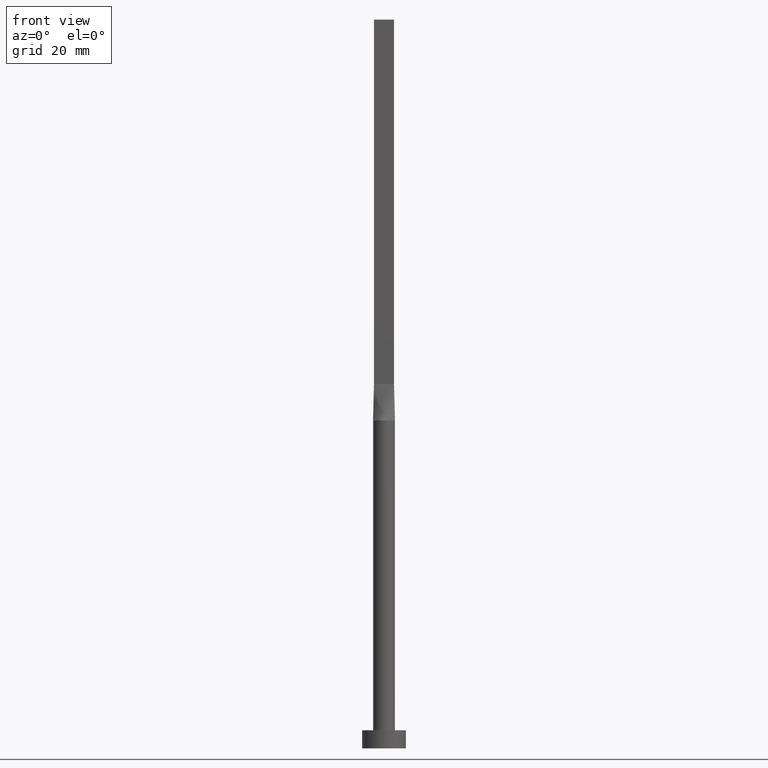
[diagram: clean part render]
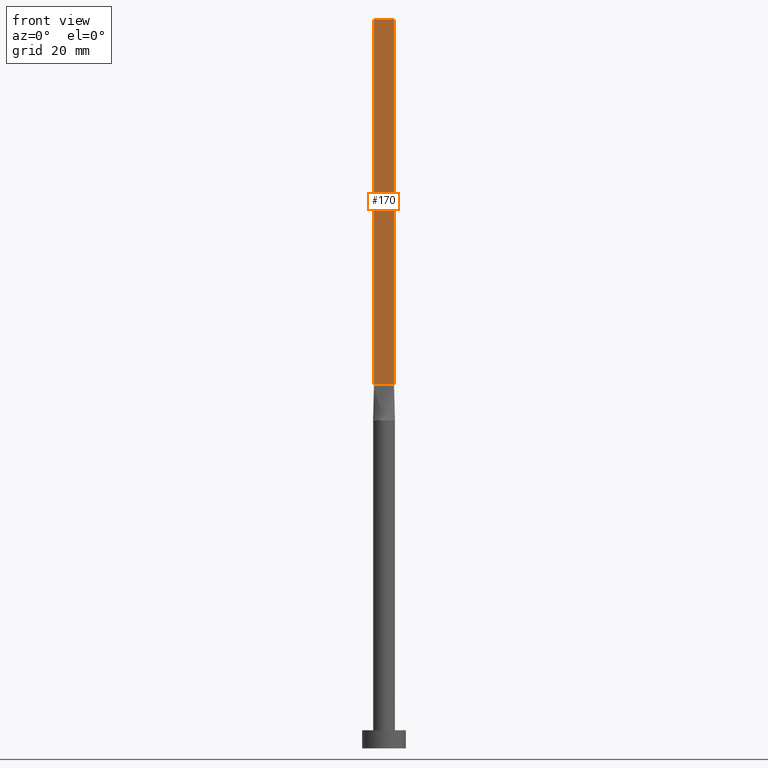
[diagram: same view with one face highlighted and labeled with its STEP entity id]
A machine part, front view. The second image highlights one B-rep face of the part: STEP entity #170.
In plain terms, the highlighted planar face has unit normal (0, 1, -0).
Its self-contained STEP definition (entity closure, byte-faithful):
#10 = CARTESIAN_POINT ( 'NONE',  ( -2.750000000000000000, -0.7499999999999994449, 100.0000000000000000 ) ) ;
#58 = LINE ( 'NONE', #10, #455 ) ;
#64 = DIRECTION ( 'NONE',  ( 1.000000000000000000, -5.913830031739115543E-17, 0.000000000000000000 ) ) ;
#72 = DIRECTION ( 'NONE',  ( -0.000000000000000000, -0.000000000000000000, -1.000000000000000000 ) ) ;
#104 = CARTESIAN_POINT ( 'NONE',  ( -2.750000000000000000, -0.7499999999999994449, 200.0000000000000000 ) ) ;
#121 = CARTESIAN_POINT ( 'NONE',  ( 2.750000000000000000, -0.7499999999999997780, 200.0000000000000000 ) ) ;
#123 = EDGE_CURVE ( 'NONE', #307, #190, #503, .T. ) ;
#128 = ORIENTED_EDGE ( 'NONE', *, *, #180, .F. ) ;
#150 = DIRECTION ( 'NONE',  ( -0.000000000000000000, -0.000000000000000000, -1.000000000000000000 ) ) ;
#167 = CARTESIAN_POINT ( 'NONE',  ( -2.750000000000000000, -0.7499999999999994449, 200.0000000000000000 ) ) ;
#170 = ADVANCED_FACE ( 'NONE', ( #259 ), #383, .F. ) ;
#180 = EDGE_CURVE ( 'NONE', #307, #440, #373, .T. ) ;
#190 = VERTEX_POINT ( 'NONE', #564 ) ;
#219 = VECTOR ( 'NONE', #150, 1000.000000000000000 ) ;
#259 = FACE_OUTER_BOUND ( 'NONE', #532, .T. ) ;
#281 = ORIENTED_EDGE ( 'NONE', *, *, #123, .T. ) ;
#289 = VECTOR ( 'NONE', #329, 1000.000000000000000 ) ;
#304 = CARTESIAN_POINT ( 'NONE',  ( 2.750000000000000000, -0.7499999999999997780, 100.0000000000000000 ) ) ;
#307 = VERTEX_POINT ( 'NONE', #104 ) ;
#312 = ORIENTED_EDGE ( 'NONE', *, *, #325, .T. ) ;
#325 = EDGE_CURVE ( 'NONE', #190, #336, #58, .T. ) ;
#329 = DIRECTION ( 'NONE',  ( 1.000000000000000000, -5.913830031739115543E-17, 0.000000000000000000 ) ) ;
#331 = CARTESIAN_POINT ( 'NONE',  ( -2.750000000000000000, -0.7499999999999994449, 200.0000000000000000 ) ) ;
#336 = VERTEX_POINT ( 'NONE', #304 ) ;
#340 = DIRECTION ( 'NONE',  ( 5.913830031739115543E-17, 1.000000000000000000, -0.000000000000000000 ) ) ;
#373 = LINE ( 'NONE', #544, #289 ) ;
#383 = PLANE ( 'NONE',  #565 ) ;
#400 = ORIENTED_EDGE ( 'NONE', *, *, #484, .F. ) ;
#418 = DIRECTION ( 'NONE',  ( -1.000000000000000000, 5.913830031739115543E-17, 0.000000000000000000 ) ) ;
#437 = CARTESIAN_POINT ( 'NONE',  ( 2.750000000000000000, -0.7499999999999997780, 200.0000000000000000 ) ) ;
#440 = VERTEX_POINT ( 'NONE', #437 ) ;
#455 = VECTOR ( 'NONE', #64, 1000.000000000000000 ) ;
#469 = LINE ( 'NONE', #121, #520 ) ;
#484 = EDGE_CURVE ( 'NONE', #440, #336, #469, .T. ) ;
#503 = LINE ( 'NONE', #331, #219 ) ;
#520 = VECTOR ( 'NONE', #72, 1000.000000000000000 ) ;
#532 = EDGE_LOOP ( 'NONE', ( #312, #400, #128, #281 ) ) ;
#544 = CARTESIAN_POINT ( 'NONE',  ( -2.750000000000000000, -0.7499999999999994449, 200.0000000000000000 ) ) ;
#564 = CARTESIAN_POINT ( 'NONE',  ( -2.750000000000000000, -0.7499999999999994449, 100.0000000000000000 ) ) ;
#565 = AXIS2_PLACEMENT_3D ( 'NONE', #167, #340, #418 ) ;